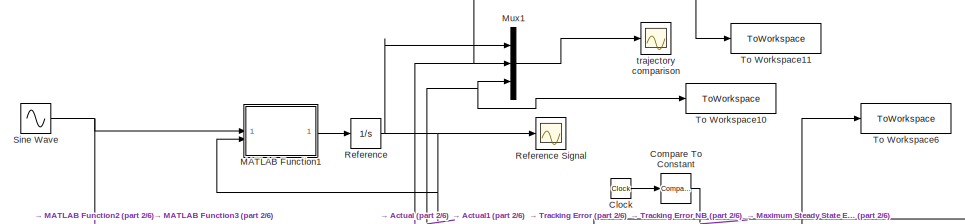
[diagram: root canvas - part 1/6, top center region]
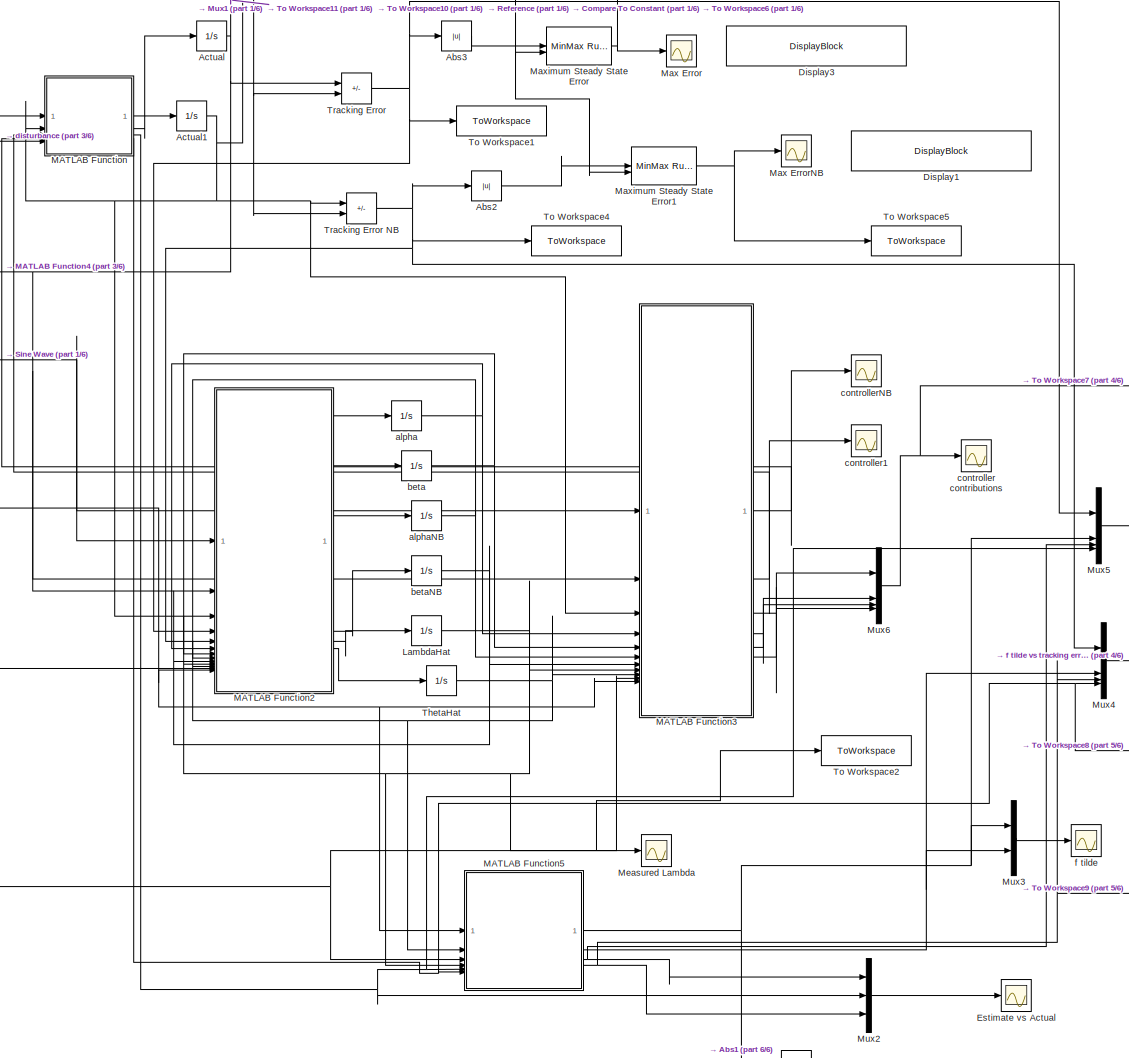
[diagram: root canvas - part 2/6, central region]
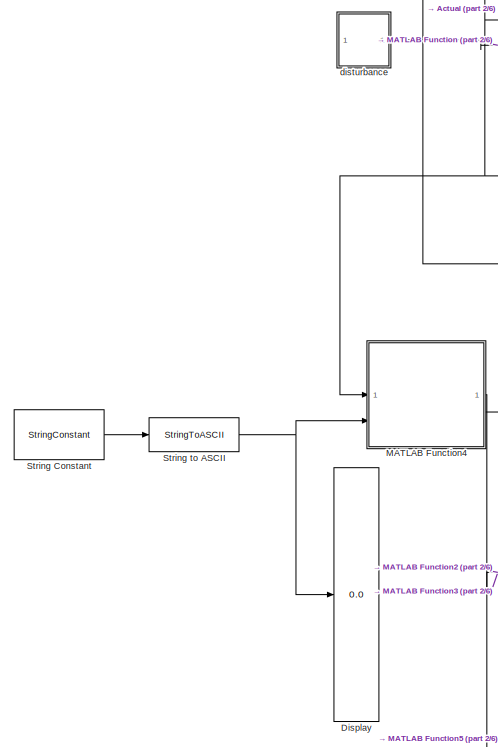
[diagram: root canvas - part 3/6, middle left region]
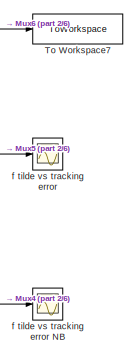
[diagram: root canvas - part 4/6, middle right region]
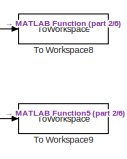
[diagram: root canvas - part 5/6, bottom right region]
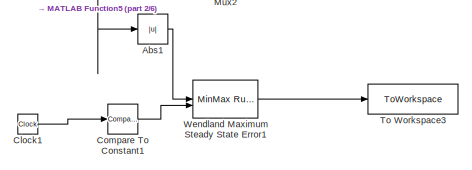
[diagram: root canvas - part 6/6, bottom right region]
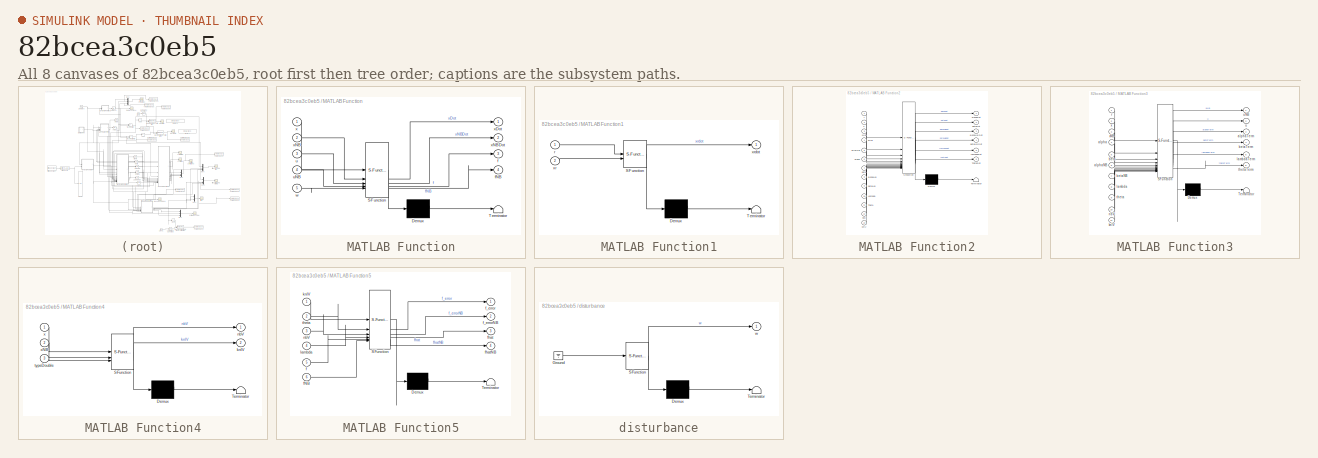
[diagram: thumbnail index - all 8 canvases of the model, root first then tree order]
MODEL slx_82bcea3c0eb5
KIND model
CONFIG AbsTol = 1e-4
CONFIG EnableMultiTasking = off
CONFIG FixedStep = 1e-5
CONFIG MaxStep = auto
CONFIG MinStep = auto
CONFIG RelTol = 1e-3
CONFIG SampleTimeConstraint = Unconstrained
CONFIG SolverName = ode45
CONFIG StartTime = 0.0
CONFIG StopTime = 20
BLOCK [Reference]  Maximum Steady State Error  REF=simulink/Math
Operations/MinMax
Running
Resettable
  SourceBlock = simulink/Math\nOperations/MinMax\nRunning\nResettable
  SourceType = MinMax Running Resettable
BLOCK [Reference]  Maximum Steady State Error1  REF=simulink/Math
Operations/MinMax
Running
Resettable
  SourceBlock = simulink/Math\nOperations/MinMax\nRunning\nResettable
  SourceType = MinMax Running Resettable
BLOCK [Sum]  Tracking Error
  IconShape = rectangular
  Inputs = +-
BLOCK [Abs] Abs1
  SaturateOnIntegerOverflow = off
BLOCK [Abs] Abs2
  SaturateOnIntegerOverflow = off
BLOCK [Abs] Abs3
  SaturateOnIntegerOverflow = off
BLOCK [Integrator] Actual
  InitialCondition = x0
BLOCK [Integrator] Actual1
  InitialCondition = x0
BLOCK [Clock] Clock
  DisplayTime = on
BLOCK [Clock] Clock1
  DisplayTime = on
BLOCK [Reference] Compare To Constant  REF=simulink/Logic and Bit
Operations/Compare
To Constant
  SourceBlock = simulink/Logic and Bit\nOperations/Compare\nTo Constant
  SourceType = Compare To Constant
BLOCK [Reference] Compare To Constant1  REF=simulink/Logic and Bit
Operations/Compare
To Constant
  SourceBlock = simulink/Logic and Bit\nOperations/Compare\nTo Constant
  SourceType = Compare To Constant
BLOCK [Display] Display
  Decimation = 1
BLOCK [DisplayBlock] Display1
  LabelPosition = Hide
  Transparency = 1
BLOCK [DisplayBlock] Display3
  LabelPosition = Hide
  Transparency = 1
BLOCK [Scope] Estimate vs Actual
  Floating = off
  NumInputPorts = 1
  ScopeSpecificationString = Simulink.scopes.TimeScopeBlockCfg('CurrentConfiguration', extmgr.ConfigurationSet(extmgr.Configuration('Core','General UI',true),extmgr.Configuration('Core','Source UI',true),extmgr.Configuration('Sources','WiredSimulink',true,'DataLoggingVariableName','ScopeData1'),extmgr.Configuration('Visuals','Time Domain',true,'SerializedDisplays',{struct('MinYLimReal','-1.24665','MaxYLimReal','1.24953','YLab...<+1601ch>
BLOCK [Integrator] LambdaHat
BLOCK [SubSystem] MATLAB Function
  ErrorFcn = Stateflow.Translate.translate
  PermitHierarchicalResolution = ExplicitOnly
  SFBlockType = MATLAB Function
  TreatAsAtomicUnit = on
BLOCK [Demux] MATLAB Function/ Demux 
  Outputs = 1
BLOCK [S-Function] MATLAB Function/ SFunction 
  EnableBusSupport = on
  FunctionName = sf_sfun
  Parameters = A,B,Dim,fMag,interps,targetCoefs,targetNu,targetScale
  PortCounts = [5 5]
  SFcnIsStateOwnerBlock = off
  SFunctionDeploymentMode = off
  Tag = Stateflow S-Function 2
BLOCK [Terminator] MATLAB Function/ Terminator 
BLOCK [Outport] MATLAB Function/f
  Port = 3
BLOCK [Outport] MATLAB Function/fNB
  Port = 4
BLOCK [Inport] MATLAB Function/u
  Port = 3
BLOCK [Inport] MATLAB Function/uNB
  Port = 4
BLOCK [Inport] MATLAB Function/w
  Port = 5
BLOCK [Inport] MATLAB Function/x
BLOCK [Outport] MATLAB Function/xDot
BLOCK [Inport] MATLAB Function/xNB
  Port = 2
BLOCK [Outport] MATLAB Function/xNBDot
  Port = 2
BLOCK [SubSystem] MATLAB Function1
  ErrorFcn = Stateflow.Translate.translate
  PermitHierarchicalResolution = ExplicitOnly
  SFBlockType = MATLAB Function
  TreatAsAtomicUnit = on
BLOCK [Demux] MATLAB Function1/ Demux 
  Outputs = 1
BLOCK [S-Function] MATLAB Function1/ SFunction 
  EnableBusSupport = on
  FunctionName = sf_sfun
  Parameters = Ar,Br
  PortCounts = [2 2]
  SFcnIsStateOwnerBlock = off
  SFunctionDeploymentMode = off
  Tag = Stateflow S-Function 1
BLOCK [Terminator] MATLAB Function1/ Terminator 
BLOCK [Inport] MATLAB Function1/r
BLOCK [Inport] MATLAB Function1/xr
  Port = 2
BLOCK [Outport] MATLAB Function1/xrdot
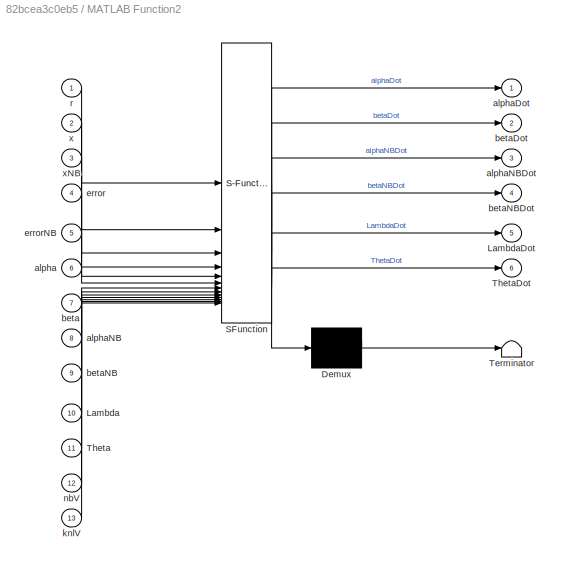
BLOCK [SubSystem] MATLAB Function2
  ErrorFcn = Stateflow.Translate.translate
  PermitHierarchicalResolution = ExplicitOnly
  SFBlockType = MATLAB Function
  TreatAsAtomicUnit = on
BLOCK [Demux] MATLAB Function2/ Demux 
  Outputs = 1
BLOCK [S-Function] MATLAB Function2/ SFunction 
  EnableBusSupport = on
  FunctionName = sf_sfun
  Parameters = K,epsilon,ga,gb,gf,sigma
  PortCounts = [13 7]
  SFcnIsStateOwnerBlock = off
  SFunctionDeploymentMode = off
  Tag = Stateflow S-Function 3
BLOCK [Terminator] MATLAB Function2/ Terminator 
BLOCK [Inport] MATLAB Function2/Lambda
  Port = 10
BLOCK [Outport] MATLAB Function2/LambdaDot
  Port = 5
BLOCK [Inport] MATLAB Function2/Theta
  Port = 11
BLOCK [Outport] MATLAB Function2/ThetaDot
  Port = 6
BLOCK [Inport] MATLAB Function2/alpha
  Port = 6
BLOCK [Outport] MATLAB Function2/alphaDot
BLOCK [Inport] MATLAB Function2/alphaNB
  Port = 8
BLOCK [Outport] MATLAB Function2/alphaNBDot
  Port = 3
BLOCK [Inport] MATLAB Function2/beta
  Port = 7
BLOCK [Outport] MATLAB Function2/betaDot
  Port = 2
BLOCK [Inport] MATLAB Function2/betaNB
  Port = 9
BLOCK [Outport] MATLAB Function2/betaNBDot
  Port = 4
BLOCK [Inport] MATLAB Function2/error
  Port = 4
BLOCK [Inport] MATLAB Function2/errorNB
  Port = 5
BLOCK [Inport] MATLAB Function2/knlV
  Port = 13
BLOCK [Inport] MATLAB Function2/nbV
  Port = 12
BLOCK [Inport] MATLAB Function2/r
BLOCK [Inport] MATLAB Function2/x
  Port = 2
BLOCK [Inport] MATLAB Function2/xNB
  Port = 3
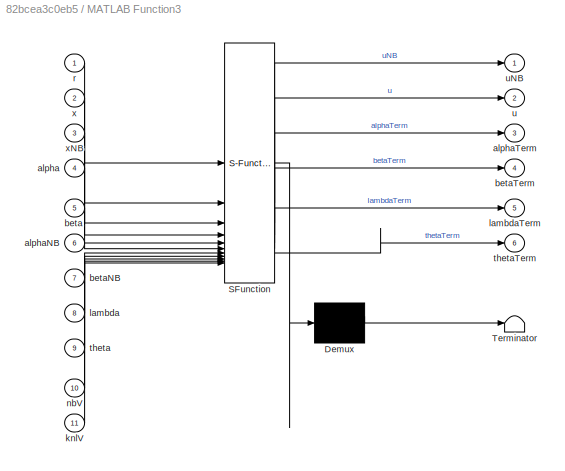
BLOCK [SubSystem] MATLAB Function3
  ErrorFcn = Stateflow.Translate.translate
  PermitHierarchicalResolution = ExplicitOnly
  SFBlockType = MATLAB Function
  TreatAsAtomicUnit = on
BLOCK [Demux] MATLAB Function3/ Demux 
  Outputs = 1
BLOCK [S-Function] MATLAB Function3/ SFunction 
  EnableBusSupport = on
  FunctionName = sf_sfun
  Parameters = B,epsilon
  PortCounts = [11 7]
  SFcnIsStateOwnerBlock = off
  SFunctionDeploymentMode = off
  Tag = Stateflow S-Function 4
BLOCK [Terminator] MATLAB Function3/ Terminator 
BLOCK [Inport] MATLAB Function3/alpha
  Port = 4
BLOCK [Inport] MATLAB Function3/alphaNB
  Port = 6
BLOCK [Outport] MATLAB Function3/alphaTerm
  Port = 3
BLOCK [Inport] MATLAB Function3/beta
  Port = 5
BLOCK [Inport] MATLAB Function3/betaNB
  Port = 7
BLOCK [Outport] MATLAB Function3/betaTerm
  Port = 4
BLOCK [Inport] MATLAB Function3/knlV
  Port = 11
BLOCK [Inport] MATLAB Function3/lambda
  Port = 8
BLOCK [Outport] MATLAB Function3/lambdaTerm
  Port = 5
BLOCK [Inport] MATLAB Function3/nbV
  Port = 10
BLOCK [Inport] MATLAB Function3/r
BLOCK [Inport] MATLAB Function3/theta
  Port = 9
BLOCK [Outport] MATLAB Function3/thetaTerm
  Port = 6
BLOCK [Outport] MATLAB Function3/u
  Port = 2
BLOCK [Outport] MATLAB Function3/uNB
BLOCK [Inport] MATLAB Function3/x
  Port = 2
BLOCK [Inport] MATLAB Function3/xNB
  Port = 3
BLOCK [SubSystem] MATLAB Function4
  ErrorFcn = Stateflow.Translate.translate
  PermitHierarchicalResolution = ExplicitOnly
  SFBlockType = MATLAB Function
  TreatAsAtomicUnit = on
BLOCK [Demux] MATLAB Function4/ Demux 
  Outputs = 1
BLOCK [S-Function] MATLAB Function4/ SFunction 
  EnableBusSupport = on
  FunctionName = sf_sfun
  Parameters = K,V,centers,par,scale
  PortCounts = [3 3]
  SFcnIsStateOwnerBlock = off
  SFunctionDeploymentMode = off
  Tag = Stateflow S-Function 5
BLOCK [Terminator] MATLAB Function4/ Terminator 
BLOCK [Outport] MATLAB Function4/knlV
  Port = 2
BLOCK [Outport] MATLAB Function4/nbV
BLOCK [Inport] MATLAB Function4/typeDouble
  Port = 3
BLOCK [Inport] MATLAB Function4/x
BLOCK [Inport] MATLAB Function4/xNB
  Port = 2
BLOCK [SubSystem] MATLAB Function5
  ErrorFcn = Stateflow.Translate.translate
  PermitHierarchicalResolution = ExplicitOnly
  SFBlockType = MATLAB Function
  TreatAsAtomicUnit = on
BLOCK [Demux] MATLAB Function5/ Demux 
  Outputs = 1
BLOCK [S-Function] MATLAB Function5/ SFunction 
  EnableBusSupport = on
  FunctionName = sf_sfun
  PortCounts = [6 5]
  SFcnIsStateOwnerBlock = off
  SFunctionDeploymentMode = off
  Tag = Stateflow S-Function 6
BLOCK [Terminator] MATLAB Function5/ Terminator 
BLOCK [Inport] MATLAB Function5/f
  Port = 5
BLOCK [Inport] MATLAB Function5/fNB
  Port = 6
BLOCK [Outport] MATLAB Function5/f_error
BLOCK [Outport] MATLAB Function5/f_errorNB
  Port = 2
BLOCK [Outport] MATLAB Function5/fhat
  Port = 3
BLOCK [Outport] MATLAB Function5/fhatNB
  Port = 4
BLOCK [Inport] MATLAB Function5/knlV
BLOCK [Inport] MATLAB Function5/lambda
  Port = 4
BLOCK [Inport] MATLAB Function5/nbV
  Port = 3
BLOCK [Inport] MATLAB Function5/theta
  Port = 2
BLOCK [Scope] Max Error
  Floating = off
  NumInputPorts = 1
  ScopeSpecificationString = Simulink.scopes.TimeScopeBlockCfg('CurrentConfiguration', extmgr.ConfigurationSet(extmgr.Configuration('Core','General UI',true),extmgr.Configuration('Core','Source UI',true),extmgr.Configuration('Sources','WiredSimulink',true,'DataLoggingVariableName','ScopeData4'),extmgr.Configuration('Visuals','Time Domain',true,'SerializedDisplays',{struct('MinYLimReal','-1.00000','MaxYLimReal','1.00000','YLab...<+1426ch>
BLOCK [Scope] Max ErrorNB
  Floating = off
  NumInputPorts = 1
  ScopeSpecificationString = Simulink.scopes.TimeScopeBlockCfg('CurrentConfiguration', extmgr.ConfigurationSet(extmgr.Configuration('Core','General UI',true),extmgr.Configuration('Core','Source UI',true),extmgr.Configuration('Sources','WiredSimulink',true,'DataLoggingVariableName','ScopeData1'),extmgr.Configuration('Visuals','Time Domain',true,'SerializedDisplays',{struct('MinYLimReal','-1.53696','MaxYLimReal','2.36845','YLab...<+1506ch>
BLOCK [Scope] Measured Lambda
  Floating = off
  NumInputPorts = 1
  ScopeSpecificationString = Simulink.scopes.TimeScopeBlockCfg('CurrentConfiguration', extmgr.ConfigurationSet(extmgr.Configuration('Core','General UI',true),extmgr.Configuration('Core','Source UI',true),extmgr.Configuration('Sources','WiredSimulink',true,'DataLoggingVariableName','ScopeData2'),extmgr.Configuration('Visuals','Time Domain',true,'SerializedDisplays',{struct('MinYLimReal','-1.20379','MaxYLimReal','0.8953','YLabe...<+4737ch>
BLOCK [Mux] Mux1
  DisplayOption = bar
  Inputs = 3
BLOCK [Mux] Mux2
  DisplayOption = bar
  Inputs = 3
BLOCK [Mux] Mux3
  DisplayOption = bar
  Inputs = 2
BLOCK [Mux] Mux4
  DisplayOption = bar
BLOCK [Mux] Mux5
  DisplayOption = bar
BLOCK [Mux] Mux6
  DisplayOption = bar
BLOCK [Integrator] Reference
  InitialCondition = xr0
BLOCK [Scope] Reference Signal
  Floating = off
  NumInputPorts = 1
  ScopeSpecificationString = Simulink.scopes.TimeScopeBlockCfg('CurrentConfiguration', extmgr.ConfigurationSet(extmgr.Configuration('Core','General UI',true,'FigureColor',[1 1 1]),extmgr.Configuration('Core','Source UI',true),extmgr.Configuration('Sources','WiredSimulink',true,'DataLoggingVariableName','ScopeData1'),extmgr.Configuration('Visuals','Time Domain',true,'SerializedDisplays',{struct('MinYLimReal','-12.43782','MaxYL...<+1950ch>
BLOCK [Sin] Sine Wave
  Amplitude = SNU
  Frequency = 2*pi*0.1
  SampleTime = 0
BLOCK [StringConstant] String Constant
  String = type
BLOCK [StringToASCII] String to ASCII
BLOCK [Integrator] ThetaHat
BLOCK [ToWorkspace] To Workspace1
  FixptAsFi = on
  MaxDataPoints = inf
  SampleTime = -1
  SaveFormat = Timeseries
  VariableName = trackingError
BLOCK [ToWorkspace] To Workspace10
  FixptAsFi = on
  MaxDataPoints = inf
  SampleTime = -1
  SaveFormat = Timeseries
  VariableName = xNB
BLOCK [ToWorkspace] To Workspace11
  FixptAsFi = on
  MaxDataPoints = inf
  SampleTime = -1
  SaveFormat = Timeseries
  VariableName = x
BLOCK [ToWorkspace] To Workspace2
  FixptAsFi = on
  MaxDataPoints = inf
  SampleTime = -1
  SaveFormat = Timeseries
  VariableName = lambda
BLOCK [ToWorkspace] To Workspace3
  FixptAsFi = on
  MaxDataPoints = inf
  SampleTime = -1
  SaveFormat = Timeseries
  VariableName = approxError
BLOCK [ToWorkspace] To Workspace4
  FixptAsFi = on
  MaxDataPoints = inf
  SampleTime = -1
  SaveFormat = Timeseries
  VariableName = trackingErrorNB
BLOCK [ToWorkspace] To Workspace5
  FixptAsFi = on
  MaxDataPoints = inf
  SampleTime = -1
  SaveFormat = Timeseries
  VariableName = ssErrorNB
BLOCK [ToWorkspace] To Workspace6
  FixptAsFi = on
  MaxDataPoints = inf
  SampleTime = -1
  SaveFormat = Timeseries
  VariableName = ssError
BLOCK [ToWorkspace] To Workspace7
  FixptAsFi = on
  MaxDataPoints = inf
  SampleTime = -1
  SaveFormat = Timeseries
  VariableName = input
BLOCK [ToWorkspace] To Workspace8
  FixptAsFi = on
  MaxDataPoints = inf
  SampleTime = -1
  SaveFormat = Timeseries
  VariableName = fNB
BLOCK [ToWorkspace] To Workspace9
  FixptAsFi = on
  MaxDataPoints = inf
  SampleTime = -1
  SaveFormat = Timeseries
  VariableName = fhatNB
BLOCK [Sum] Tracking Error NB
  IconShape = rectangular
  Inputs = +-
BLOCK [Reference] Wendland Maximum Steady State Error1  REF=simulink/Math
Operations/MinMax
Running
Resettable
  SourceBlock = simulink/Math\nOperations/MinMax\nRunning\nResettable
  SourceType = MinMax Running Resettable
BLOCK [Integrator] alpha
  InitialCondition = alpha0
BLOCK [Integrator] alphaNB
  InitialCondition = alpha0
BLOCK [Integrator] beta
  InitialCondition = beta0
BLOCK [Integrator] betaNB
  InitialCondition = beta0
BLOCK [Scope] controller contributions
  Floating = off
  NumInputPorts = 1
  ScopeSpecificationString = Simulink.scopes.TimeScopeBlockCfg('CurrentConfiguration', extmgr.ConfigurationSet(extmgr.Configuration('Core','General UI',true),extmgr.Configuration('Core','Source UI',true),extmgr.Configuration('Sources','WiredSimulink',true,'DataLoggingVariableName','ScopeData3'),extmgr.Configuration('Visuals','Time Domain',true,'SerializedDisplays',{struct('MinYLimReal','-72.08658','MaxYLimReal','56.04413','YL...<+1622ch>
BLOCK [Scope] controller1
  Floating = off
  NumInputPorts = 1
  ScopeSpecificationString = Simulink.scopes.TimeScopeBlockCfg('CurrentConfiguration', extmgr.ConfigurationSet(extmgr.Configuration('Core','General UI',true),extmgr.Configuration('Core','Source UI',true),extmgr.Configuration('Sources','WiredSimulink',true,'DataLoggingVariableName','ScopeData1'),extmgr.Configuration('Visuals','Time Domain',true,'SerializedDisplays',{struct('MinYLimReal','-12.5','MaxYLimReal','12.5','YLabelReal...<+1393ch>
BLOCK [Scope] controllerNB
  Floating = off
  NumInputPorts = 1
  ScopeSpecificationString = Simulink.scopes.TimeScopeBlockCfg('CurrentConfiguration', extmgr.ConfigurationSet(extmgr.Configuration('Core','General UI',true),extmgr.Configuration('Core','Source UI',true),extmgr.Configuration('Sources','WiredSimulink',true,'DataLoggingVariableName','ScopeData1'),extmgr.Configuration('Visuals','Time Domain',true,'SerializedDisplays',{struct('MinYLimReal','-12.5','MaxYLimReal','12.5','YLabelReal...<+1393ch>
BLOCK [SubSystem] disturbance
  ErrorFcn = Stateflow.Translate.translate
  PermitHierarchicalResolution = ExplicitOnly
  SFBlockType = MATLAB Function
  TreatAsAtomicUnit = on
BLOCK [Demux] disturbance/ Demux 
  Outputs = 1
BLOCK [Ground] disturbance/ Ground 
BLOCK [S-Function] disturbance/ SFunction 
  EnableBusSupport = on
  FunctionName = sf_sfun
  Parameters = delta
  PortCounts = [1 2]
  SFcnIsStateOwnerBlock = off
  SFunctionDeploymentMode = off
  Tag = Stateflow S-Function 7
BLOCK [Terminator] disturbance/ Terminator 
BLOCK [Outport] disturbance/w
BLOCK [Scope] f tilde
  Floating = off
  NumInputPorts = 1
  ScopeSpecificationString = Simulink.scopes.TimeScopeBlockCfg('CurrentConfiguration', extmgr.ConfigurationSet(extmgr.Configuration('Core','General UI',true),extmgr.Configuration('Core','Source UI',true),extmgr.Configuration('Sources','WiredSimulink',true,'DataLoggingVariableName','ScopeData3'),extmgr.Configuration('Visuals','Time Domain',true,'SerializedDisplays',{struct('MinYLimReal','-1.21765','MaxYLimReal','1.32584','YLab...<+1511ch>
BLOCK [Scope] f tilde vs tracking error
  Floating = off
  NumInputPorts = 1
  ScopeSpecificationString = Simulink.scopes.TimeScopeBlockCfg('CurrentConfiguration', extmgr.ConfigurationSet(extmgr.Configuration('Core','General UI',true),extmgr.Configuration('Core','Source UI',true),extmgr.Configuration('Sources','WiredSimulink',true,'DataLoggingVariableName','ScopeData2'),extmgr.Configuration('Visuals','Time Domain',true,'SerializedDisplays',{struct('MinYLimReal','-0.46044','MaxYLimReal','0.69747','YLab...<+1614ch>
BLOCK [Scope] f tilde vs tracking error NB
  Floating = off
  NumInputPorts = 1
  ScopeSpecificationString = Simulink.scopes.TimeScopeBlockCfg('CurrentConfiguration', extmgr.ConfigurationSet(extmgr.Configuration('Core','General UI',true),extmgr.Configuration('Core','Source UI',true),extmgr.Configuration('Sources','WiredSimulink',true,'DataLoggingVariableName','ScopeData1'),extmgr.Configuration('Visuals','Time Domain',true,'SerializedDisplays',{struct('MinYLimReal','-0.20999','MaxYLimReal','1.8899','YLabe...<+1617ch>
BLOCK [Scope] trajectory comparison
  Floating = off
  NumInputPorts = 1
  ScopeSpecificationString = Simulink.scopes.TimeScopeBlockCfg('CurrentConfiguration', extmgr.ConfigurationSet(extmgr.Configuration('Core','General UI',true,'FigureColor',[1 1 1]),extmgr.Configuration('Core','Source UI',true),extmgr.Configuration('Sources','WiredSimulink',true,'DataLoggingVariableName','ScopeData1'),extmgr.Configuration('Visuals','Time Domain',true,'SerializedDisplays',{struct('MinYLimReal','-56.25583','MaxYL...<+1967ch>
NET  Maximum Steady State Error1:1 -> Max ErrorNB:1, To Workspace5:1
NET  Maximum Steady State Error:1 -> Max Error:1, To Workspace6:1
NET  Tracking Error:1 -> Abs3:1, MATLAB Function2:4, Mux5:1, To Workspace1:1
LINE Abs1:1 -> Wendland Maximum Steady State Error1:1
LINE Abs2:1 ->  Maximum Steady State Error1:1
LINE Abs3:1 ->  Maximum Steady State Error:1
NET Actual1:1 -> MATLAB Function2:3, MATLAB Function3:3, MATLAB Function:2, Mux1:3, To Workspace10:1, Tracking Error NB:1
NET Actual:1 ->  Tracking Error:1, MATLAB Function2:2, MATLAB Function3:2, MATLAB Function4:1, MATLAB Function:1, Mux1:2, To Workspace11:1
LINE Clock1:1 -> Compare To Constant1:1
LINE Clock:1 -> Compare To Constant:1
LINE Compare To Constant1:1 -> Wendland Maximum Steady State Error1:2
NET Compare To Constant:1 ->  Maximum Steady State Error1:2,  Maximum Steady State Error:2
NET LambdaHat:1 -> MATLAB Function2:10, MATLAB Function3:8, MATLAB Function5:4, Measured Lambda:1, To Workspace2:1
LINE MATLAB Function1:1 -> Reference:1
LINE MATLAB Function2:1 -> alpha:1
LINE MATLAB Function2:2 -> beta:1
LINE MATLAB Function2:3 -> alphaNB:1
LINE MATLAB Function2:4 -> betaNB:1
LINE MATLAB Function2:5 -> LambdaHat:1
LINE MATLAB Function2:6 -> ThetaHat:1
NET MATLAB Function3:1 -> MATLAB Function:4, controllerNB:1
NET MATLAB Function3:2 -> MATLAB Function:3, controller1:1
LINE MATLAB Function3:3 -> Mux6:1
LINE MATLAB Function3:4 -> Mux6:2
LINE MATLAB Function3:5 -> Mux6:3
LINE MATLAB Function3:6 -> Mux6:4
NET MATLAB Function4:1 -> MATLAB Function2:12, MATLAB Function3:10, MATLAB Function5:3
NET MATLAB Function4:2 -> MATLAB Function2:13, MATLAB Function3:11, MATLAB Function5:1
NET MATLAB Function5:1 -> Abs1:1, Mux3:1, Mux5:2
NET MATLAB Function5:2 -> Mux3:2, Mux4:2
NET MATLAB Function5:3 -> Mux2:1, Mux5:3
NET MATLAB Function5:4 -> Mux2:3, Mux4:3, To Workspace9:1
LINE MATLAB Function:1 -> Actual:1
LINE MATLAB Function:2 -> Actual1:1
NET MATLAB Function:3 -> MATLAB Function5:5, Mux2:2, Mux5:4
NET MATLAB Function:4 -> MATLAB Function5:6, Mux4:4, To Workspace8:1
LINE Mux1:1 -> trajectory comparison:1
LINE Mux2:1 -> Estimate vs Actual:1
LINE Mux3:1 -> f tilde:1
LINE Mux4:1 -> f tilde vs tracking error NB:1
LINE Mux5:1 -> f tilde vs tracking error:1
NET Mux6:1 -> To Workspace7:1, controller contributions:1
NET Reference:1 ->  Tracking Error:2, MATLAB Function1:2, Mux1:1, Reference Signal:1, Tracking Error NB:2
NET Sine Wave:1 -> MATLAB Function1:1, MATLAB Function2:1, MATLAB Function3:1
LINE String Constant:1 -> String to ASCII:1
NET String to ASCII:1 -> Display:1, MATLAB Function4:3
NET ThetaHat:1 -> MATLAB Function2:11, MATLAB Function3:9, MATLAB Function5:2
NET Tracking Error NB:1 -> Abs2:1, MATLAB Function2:5, Mux4:1, To Workspace4:1
LINE Wendland Maximum Steady State Error1:1 -> To Workspace3:1
NET alpha:1 -> MATLAB Function2:6, MATLAB Function3:4
NET alphaNB:1 -> MATLAB Function2:8, MATLAB Function3:6
NET beta:1 -> MATLAB Function2:7, MATLAB Function3:5
NET betaNB:1 -> MATLAB Function2:9, MATLAB Function3:7
LINE disturbance:1 -> MATLAB Function:5
note: NET lines group one-source signal fan-out (src -> all destinations, sorted); 1:1 wires keep LINE
CHART MATLAB Function3 states=1 transitions=1
  STATE_LABEL 'eML_blk_kernel()'
  STATE_LABEL "SCRIPT:\nfunction [uNB,u,alphaTerm,betaTerm,lambdaTerm,thetaTerm] = controller(r, x,xNB, alpha,beta,alphaNB,betaNB, lambda,theta, nbV,knlV,epsilon,B)\n% P= 1;\n% if B*P*x >= 0\n%     vN = epsilon;\n% else\n%     vN = -epsilon;\n% end\n% u = alpha*x+beta*r+theta'*knlV;\n% uNB = alphaNB*xNB+betaNB*r+lambda'*nbV;\n\n\nu = r + theta'*knlV;\nuNB = r + lambda'*nbV;\n\nalphaTerm = alphaNB*xNB;\nbetaTerm = betaNB*r;\nlamb...<+51ch>"
CHART MATLAB Function4 states=1 transitions=1
  STATE_LABEL 'eML_blk_kernel()'
  STATE_LABEL 'SCRIPT:\nfunction [nbV,knlV]  = Knl_Eval(x,xNB,centers,typeDouble, scale, par,K,V)\n    type = char(typeDouble(typeDouble~=0));\n    knlV = real(kermat(centers,x,type,par,scale));\n    knlVNB = real(kermat(centers,xNB,type,par,scale));\n    N = length(centers);\n    z = diag(K);\n    v_x = zeros(N,1);\n    P = sqrt(K(1,1));\n\n    v_x(1) = knlVNB(1)/P;\n%     \n%     V = zeros(N,N);\n%     if N > 1\n%         V...<+1166ch>'
CHART MATLAB Function5 states=1 transitions=1
  STATE_LABEL 'eML_blk_kernel()'
  STATE_LABEL "SCRIPT:\nfunction [f_error,f_errorNB,fhat,fhatNB]  = functionError(knlV,theta,nbV,lambda, f,fNB)\nfhatNB = lambda'*nbV;\nf_errorNB = fNB-fhatNB;\n\nfhat = theta'*knlV;\nf_error = f-fhat;\n\n\n\n\n"
CHART disturbance states=1 transitions=1
  STATE_LABEL 'eML_blk_kernel()'
  STATE_LABEL 'SCRIPT:\nfunction w   = plant(delta)\n% \nw = 0.5*rand;\n\n'
CHART MATLAB Function1 states=1 transitions=1
  STATE_LABEL 'eML_blk_kernel()'
  STATE_LABEL 'SCRIPT:\nfunction xrdot = reference(r,xr,Ar, Br)\n\nxrdot = Ar*xr+Br*r;\n'
CHART MATLAB Function states=1 transitions=1
  STATE_LABEL 'eML_blk_kernel()'
  STATE_LABEL "SCRIPT:\nfunction [xDot,xNBDot,f,fNB]  = plant(x,xNB,u,uNB,A, B,w,interps, targetCoefs,targetScale,targetNu, Dim,fMag)\n% \n% targetKnlV = real(kermat(interps,x,'ms',targetNu-Dim/2,targetScale));\n% f = targetCoefs'*targetKnlV;\n\nf = fMag*tanh(0.1*x);\n\n% targetKnlV_NB = real(kermat(interps,xNB,'ms',targetNu-Dim/2,targetScale));\n% fNB = targetCoefs'*targetKnlV_NB;\n\nfNB = fMag*tanh(0.1*xNB);\n\n\nxDot = A*x...<+42ch>"
CHART MATLAB Function2 states=1 transitions=1
  STATE_LABEL 'eML_blk_kernel()'
  STATE_LABEL 'SCRIPT:\nfunction [alphaDot, betaDot,alphaNBDot, betaNBDot, LambdaDot, ThetaDot] = evo_law(ga, gb, gf, sigma, r, x, xNB, error,errorNB, alpha, beta,alphaNB, betaNB, Lambda, Theta, nbV,knlV,epsilon, K)\n\n\n%% Standard RKHS Sigma Mod\n% alphaDot=-ga*x*error-sigma*alpha;\n% betaDot=-gb*r*error-sigma*beta;\n% ThetaDot=gf*invK*knlV*error-sigma*Theta;\n\n%% Standard RKHS Deadzone\nif abs(error) > epsilon\n    alp...<+566ch>'
CHART  states=0 transitions=0
CHART  states=0 transitions=0
CHART  states=0 transitions=0
CHART  states=0 transitions=0
CHART  states=0 transitions=0
CHART  states=0 transitions=0
CHART  states=0 transitions=0
